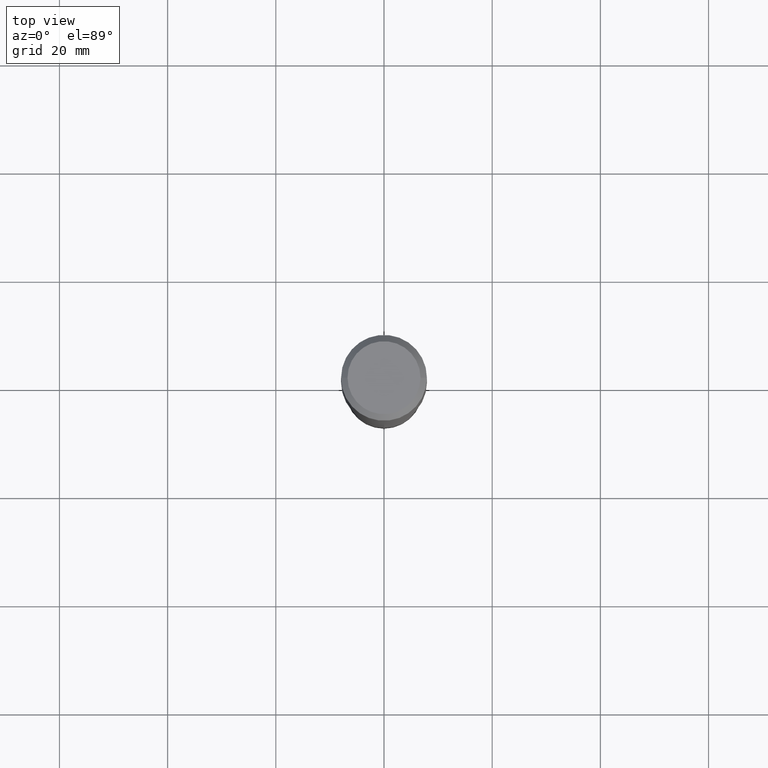
[diagram: clean part render]
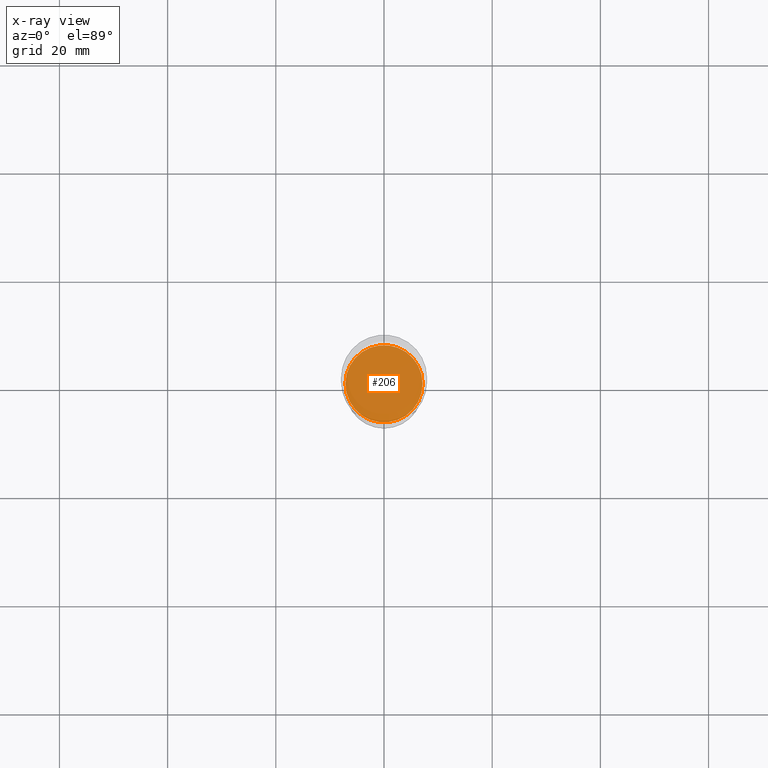
[diagram: x-ray — body ghosted, one internal face saturated and labeled with its STEP entity id]
A machine part, top view, then the same camera in x-ray: the body is ghosted and one INTERNAL B-rep face — a face not visible from any outside direction — is saturated and labeled: STEP entity #206.
In plain terms, the highlighted planar face has unit normal (-0, 0, 1).
Its self-contained STEP definition (entity closure, byte-faithful):
#14 = FACE_OUTER_BOUND ( 'NONE', #167, .T. ) ;
#59 = DIRECTION ( 'NONE',  ( -2.445468806185136597E-29, 3.491481338843145583E-15, 1.000000000000000000 ) ) ;
#94 = VERTEX_POINT ( 'NONE', #221 ) ;
#95 = DIRECTION ( 'NONE',  ( 1.000000000000000000, -6.982962677686264344E-15, 0.000000000000000000 ) ) ;
#140 = ORIENTED_EDGE ( 'NONE', *, *, #349, .F. ) ;
#159 = DIRECTION ( 'NONE',  ( 1.000000000000000000, -6.982962677686265922E-15, 4.876176775795935793E-29 ) ) ;
#162 = CARTESIAN_POINT ( 'NONE',  ( 6.266513815849411408E-29, -8.946920930785559988E-15, -2.562500000000000000 ) ) ;
#167 = EDGE_LOOP ( 'NONE', ( #140, #311 ) ) ;
#206 = ADVANCED_FACE ( 'NONE', ( #14 ), #466, .F. ) ;
#221 = CARTESIAN_POINT ( 'NONE',  ( 0.2807499999999999996, -1.090738770254597870E-14, -2.562500000000000000 ) ) ;
#228 = AXIS2_PLACEMENT_3D ( 'NONE', #291, #59, #356 ) ;
#256 = CARTESIAN_POINT ( 'NONE',  ( -0.2807499999999999996, -6.949422972964966335E-15, -2.562500000000000000 ) ) ;
#291 = CARTESIAN_POINT ( 'NONE',  ( 6.266513815849411408E-29, -8.946920930785559988E-15, -2.562500000000000000 ) ) ;
#311 = ORIENTED_EDGE ( 'NONE', *, *, #406, .F. ) ;
#316 = AXIS2_PLACEMENT_3D ( 'NONE', #162, #403, #95 ) ;
#347 = CIRCLE ( 'NONE', #316, 0.2807499999999999996 ) ;
#349 = EDGE_CURVE ( 'NONE', #94, #437, #347, .T. ) ;
#356 = DIRECTION ( 'NONE',  ( 1.000000000000000000, -6.982962677686264344E-15, 0.000000000000000000 ) ) ;
#398 = AXIS2_PLACEMENT_3D ( 'NONE', #469, #431, #159 ) ;
#403 = DIRECTION ( 'NONE',  ( -2.445468806185136597E-29, 3.491481338843145583E-15, 1.000000000000000000 ) ) ;
#406 = EDGE_CURVE ( 'NONE', #437, #94, #424, .T. ) ;
#424 = CIRCLE ( 'NONE', #228, 0.2807499999999999996 ) ;
#431 = DIRECTION ( 'NONE',  ( -2.438088387897960049E-29, 3.491481338843145188E-15, 1.000000000000000000 ) ) ;
#437 = VERTEX_POINT ( 'NONE', #256 ) ;
#466 = PLANE ( 'NONE',  #398 ) ;
#469 = CARTESIAN_POINT ( 'NONE',  ( 6.266513815849411408E-29, -8.946920930785559988E-15, -2.562500000000000000 ) ) ;